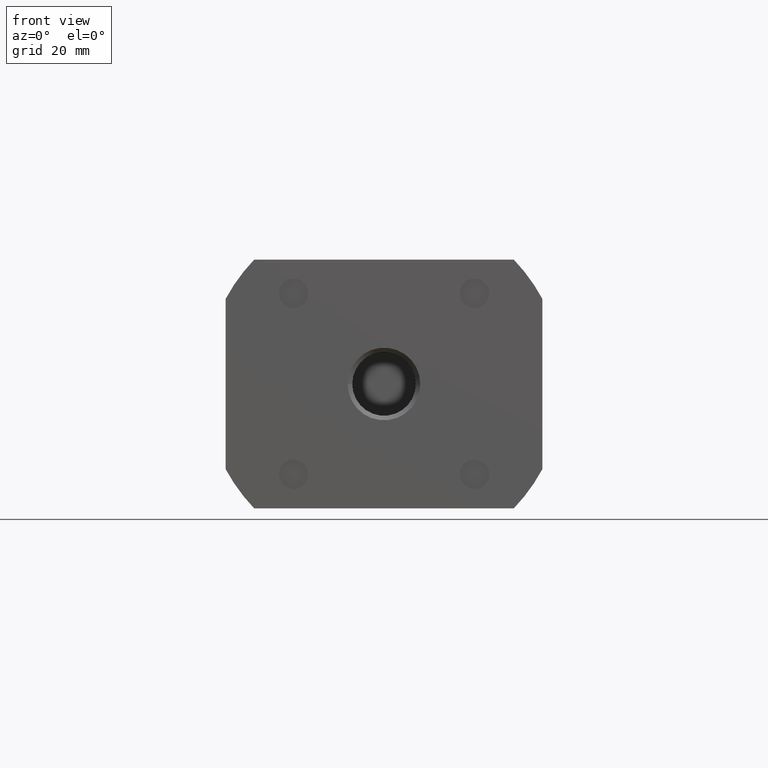
[diagram: clean part render]
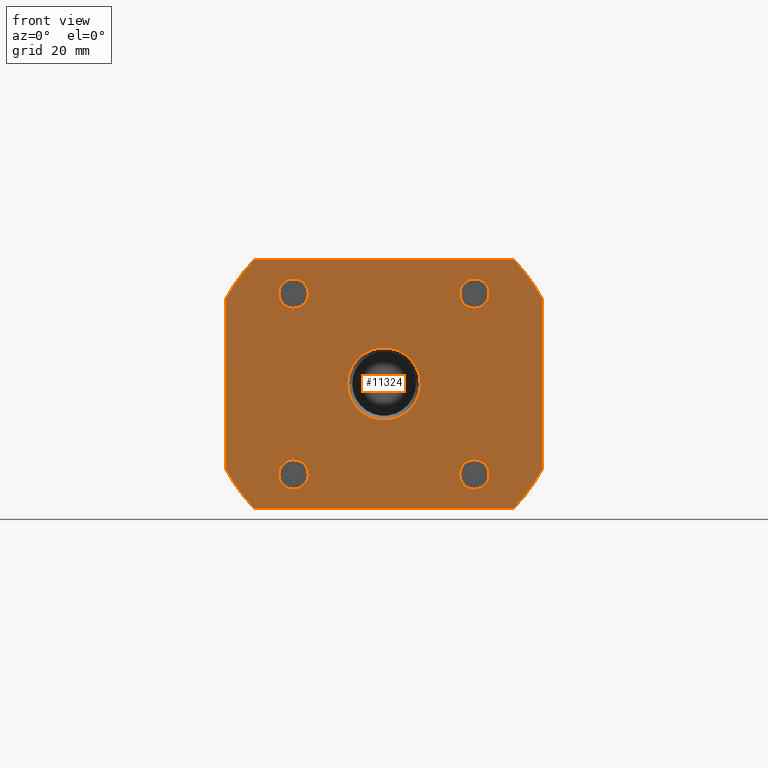
[diagram: same view with one face highlighted and labeled with its STEP entity id]
A machine part, front view. The second image highlights one B-rep face of the part: STEP entity #11324.
In plain terms, the highlighted planar face has unit normal (0, 1, 0).
Its self-contained STEP definition (entity closure, byte-faithful):
#11051=CARTESIAN_POINT('',(0.837500000000000,7.051593E-016,-1.0));
#11052=VERTEX_POINT('',#11051);
#11053=CARTESIAN_POINT('',(1.0,7.863444E-016,-1.0));
#11054=DIRECTION('',(0.0,1.0,0.0));
#11055=DIRECTION('',(-1.0,0.0,0.0));
#11056=AXIS2_PLACEMENT_3D('',#11053,#11054,#11055);
#11057=CIRCLE('',#11056,0.162500000000000);
#11058=EDGE_CURVE('',#11052,#11052,#11057,.T.);
#11092=CARTESIAN_POINT('',(-1.162500000000000,-2.940414E-016,-1.000000000000000));
#11093=VERTEX_POINT('',#11092);
#11094=CARTESIAN_POINT('',(-1.0,-2.128564E-016,-1.0));
#11095=DIRECTION('',(0.0,1.0,0.0));
#11096=DIRECTION('',(-1.0,0.0,0.0));
#11097=AXIS2_PLACEMENT_3D('',#11094,#11095,#11096);
#11098=CIRCLE('',#11097,0.162500000000000);
#11099=EDGE_CURVE('',#11093,#11093,#11098,.T.);
#11133=CARTESIAN_POINT('',(0.837500000000000,1.316713E-016,1.0));
#11134=VERTEX_POINT('',#11133);
#11135=CARTESIAN_POINT('',(1.0,2.128564E-016,1.0));
#11136=DIRECTION('',(0.0,1.0,0.0));
#11137=DIRECTION('',(-1.0,0.0,0.0));
#11138=AXIS2_PLACEMENT_3D('',#11135,#11136,#11137);
#11139=CIRCLE('',#11138,0.162500000000000);
#11140=EDGE_CURVE('',#11134,#11134,#11139,.T.);
#11182=CARTESIAN_POINT('',(-1.162500000000000,-8.675294E-016,1.000000000000000));
#11183=VERTEX_POINT('',#11182);
#11184=CARTESIAN_POINT('',(-1.0,-7.863444E-016,1.0));
#11185=DIRECTION('',(0.0,1.0,0.0));
#11186=DIRECTION('',(-1.0,0.0,0.0));
#11187=AXIS2_PLACEMENT_3D('',#11184,#11185,#11186);
#11188=CIRCLE('',#11187,0.162500000000000);
#11189=EDGE_CURVE('',#11183,#11183,#11188,.T.);
#11210=CARTESIAN_POINT('',(-0.401500000000000,-2.005895E-016,-8.146361E-017));
#11211=VERTEX_POINT('',#11210);
#11212=CARTESIAN_POINT('',(0.0,0.0,0.0));
#11213=DIRECTION('',(0.0,-1.0,0.0));
#11214=DIRECTION('',(1.0,0.0,0.0));
#11215=AXIS2_PLACEMENT_3D('',#11212,#11213,#11214);
#11216=CIRCLE('',#11215,0.401500000000000);
#11217=EDGE_CURVE('',#11211,#11211,#11216,.T.);
#11234=CARTESIAN_POINT('',(1.311287E-016,4.042744E-032,8.748050E-017));
#11235=DIRECTION('',(0.0,1.0,0.0));
#11236=DIRECTION('',(0.0,0.0,-1.0));
#11237=AXIS2_PLACEMENT_3D('',#11234,#11235,#11236);
#11238=PLANE('',#11237);
#11239=CARTESIAN_POINT('',(1.435106703349963,3.227068E-016,1.375000000000000));
#11240=VERTEX_POINT('',#11239);
#11241=CARTESIAN_POINT('',(1.750000000000000,6.041433E-016,0.942155109310564));
#11242=VERTEX_POINT('',#11241);
#11243=CARTESIAN_POINT('',(0.0,0.0,0.0));
#11244=DIRECTION('',(0.0,1.0,0.0));
#11245=DIRECTION('',(1.0,0.0,0.0));
#11246=AXIS2_PLACEMENT_3D('',#11243,#11244,#11245);
#11247=CIRCLE('',#11246,1.987500000000000);
#11248=EDGE_CURVE('',#11240,#11242,#11247,.T.);
#11249=ORIENTED_EDGE('',*,*,#11248,.F.);
#11250=CARTESIAN_POINT('',(-1.435106703349964,-1.111253E-015,1.375000000000000));
#11251=VERTEX_POINT('',#11250);
#11252=CARTESIAN_POINT('',(-1.435106703349964,-1.111253E-015,1.375000000000000));
#11253=DIRECTION('',(1.0,0.0,0.0));
#11254=VECTOR('',#11253,2.870213406699927);
#11255=LINE('',#11252,#11254);
#11256=EDGE_CURVE('',#11251,#11240,#11255,.T.);
#11257=ORIENTED_EDGE('',*,*,#11256,.F.);
#11258=CARTESIAN_POINT('',(-1.750000000000000,-1.144458E-015,0.942155109310564));
#11259=VERTEX_POINT('',#11258);
#11260=CARTESIAN_POINT('',(0.0,0.0,0.0));
#11261=DIRECTION('',(0.0,1.0,0.0));
#11262=DIRECTION('',(1.0,0.0,0.0));
#11263=AXIS2_PLACEMENT_3D('',#11260,#11261,#11262);
#11264=CIRCLE('',#11263,1.987500000000000);
#11265=EDGE_CURVE('',#11259,#11251,#11264,.T.);
#11266=ORIENTED_EDGE('',*,*,#11265,.F.);
#11267=CARTESIAN_POINT('',(-1.750000000000000,-6.041433E-016,-0.942155109310563));
#11268=VERTEX_POINT('',#11267);
#11269=CARTESIAN_POINT('',(-1.750000000000000,-6.041433E-016,-0.942155109310563));
#11270=DIRECTION('',(0.0,0.0,1.0));
#11271=VECTOR('',#11270,1.884310218621127);
#11272=LINE('',#11269,#11271);
#11273=EDGE_CURVE('',#11268,#11259,#11272,.T.);
#11274=ORIENTED_EDGE('',*,*,#11273,.F.);
#11275=CARTESIAN_POINT('',(-1.435106703349964,-3.227068E-016,-1.375000000000000));
#11276=VERTEX_POINT('',#11275);
#11277=CARTESIAN_POINT('',(0.0,0.0,0.0));
#11278=DIRECTION('',(0.0,1.0,0.0));
#11279=DIRECTION('',(1.0,0.0,0.0));
#11280=AXIS2_PLACEMENT_3D('',#11277,#11278,#11279);
#11281=CIRCLE('',#11280,1.987500000000000);
#11282=EDGE_CURVE('',#11276,#11268,#11281,.T.);
#11283=ORIENTED_EDGE('',*,*,#11282,.F.);
#11284=CARTESIAN_POINT('',(1.435106703349963,1.111253E-015,-1.375000000000000));
#11285=VERTEX_POINT('',#11284);
#11286=CARTESIAN_POINT('',(1.435106703349963,1.111253E-015,-1.375000000000000));
#11287=DIRECTION('',(-1.0,0.0,0.0));
#11288=VECTOR('',#11287,2.870213406699928);
#11289=LINE('',#11286,#11288);
#11290=EDGE_CURVE('',#11285,#11276,#11289,.T.);
#11291=ORIENTED_EDGE('',*,*,#11290,.F.);
#11292=CARTESIAN_POINT('',(1.750000000000000,1.144458E-015,-0.942155109310565));
#11293=VERTEX_POINT('',#11292);
#11294=CARTESIAN_POINT('',(0.0,0.0,0.0));
#11295=DIRECTION('',(0.0,1.0,0.0));
#11296=DIRECTION('',(1.0,0.0,0.0));
#11297=AXIS2_PLACEMENT_3D('',#11294,#11295,#11296);
#11298=CIRCLE('',#11297,1.987500000000000);
#11299=EDGE_CURVE('',#11293,#11285,#11298,.T.);
#11300=ORIENTED_EDGE('',*,*,#11299,.F.);
#11301=CARTESIAN_POINT('',(1.750000000000000,6.041433E-016,0.942155109310564));
#11302=DIRECTION('',(0.0,0.0,-1.0));
#11303=VECTOR('',#11302,1.884310218621129);
#11304=LINE('',#11301,#11303);
#11305=EDGE_CURVE('',#11242,#11293,#11304,.T.);
#11306=ORIENTED_EDGE('',*,*,#11305,.F.);
#11307=EDGE_LOOP('',(#11249,#11257,#11266,#11274,#11283,#11291,#11300,#11306));
#11308=FACE_OUTER_BOUND('',#11307,.T.);
#11309=ORIENTED_EDGE('',*,*,#11058,.T.);
#11310=EDGE_LOOP('',(#11309));
#11311=FACE_BOUND('',#11310,.T.);
#11312=ORIENTED_EDGE('',*,*,#11099,.T.);
#11313=EDGE_LOOP('',(#11312));
#11314=FACE_BOUND('',#11313,.T.);
#11315=ORIENTED_EDGE('',*,*,#11140,.T.);
#11316=EDGE_LOOP('',(#11315));
#11317=FACE_BOUND('',#11316,.T.);
#11318=ORIENTED_EDGE('',*,*,#11189,.T.);
#11319=EDGE_LOOP('',(#11318));
#11320=FACE_BOUND('',#11319,.T.);
#11321=ORIENTED_EDGE('',*,*,#11217,.F.);
#11322=EDGE_LOOP('',(#11321));
#11323=FACE_BOUND('',#11322,.T.);
#11324=ADVANCED_FACE('',(#11308,#11311,#11314,#11317,#11320,#11323),#11238,.F.);